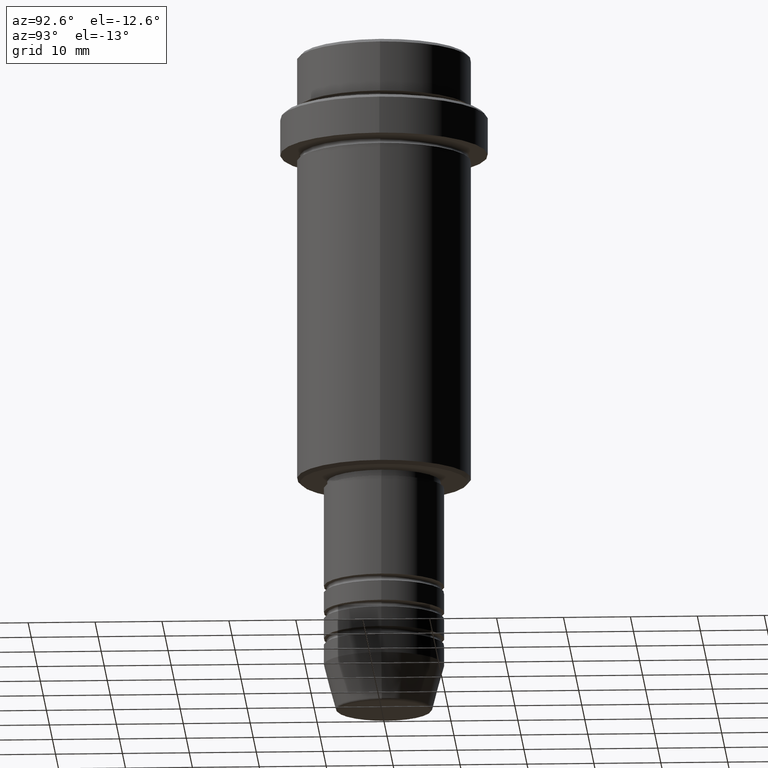
[diagram: clean part render]
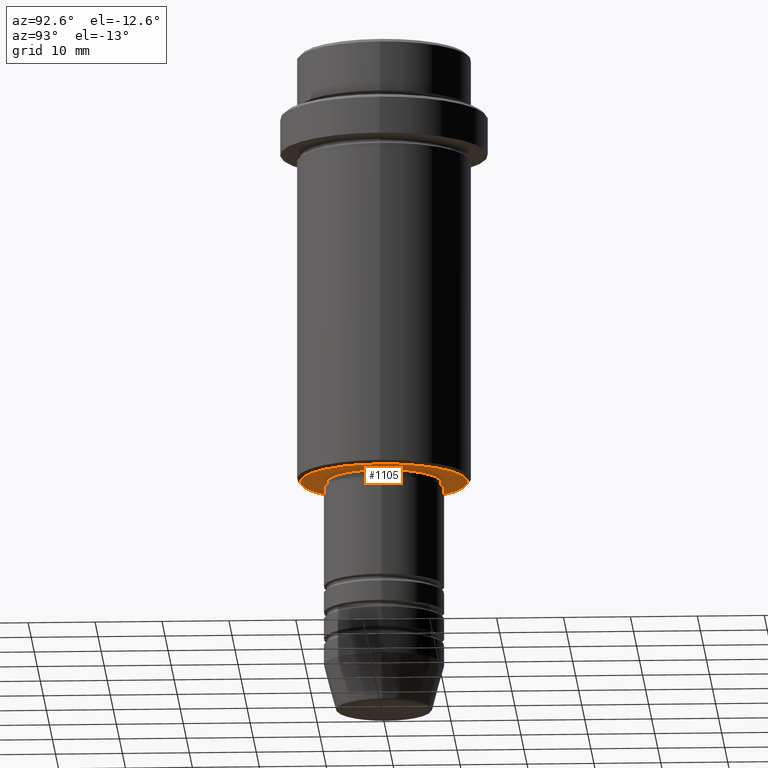
[diagram: same view with one face highlighted and labeled with its STEP entity id]
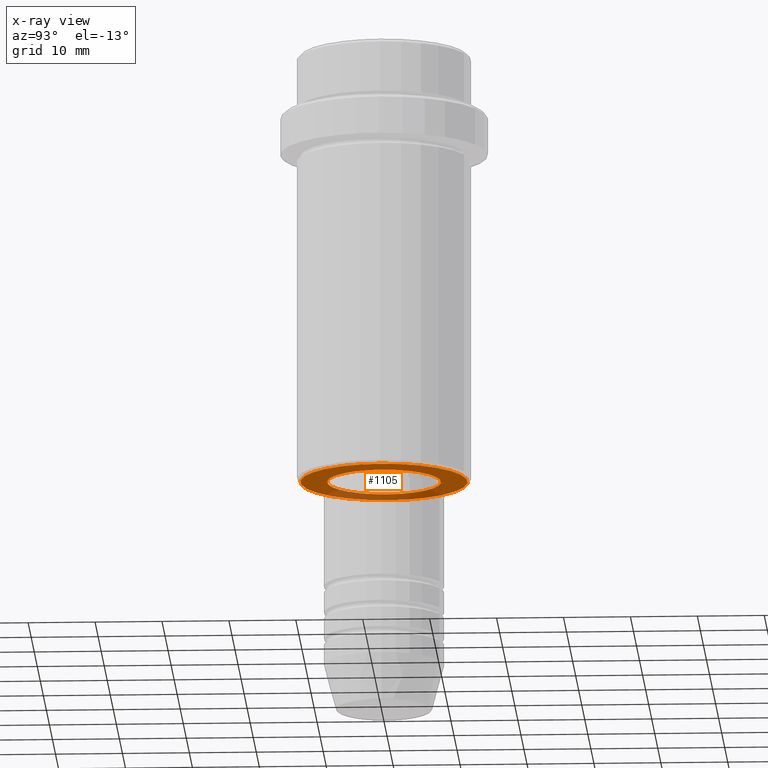
[diagram: x-ray of the same camera — body ghosted, the highlighted face saturated]
A machine part, auxiliary view. The second image highlights one B-rep face of the part: STEP entity #1105.
The next image is the same camera in x-ray: the body ghosted, the highlighted face saturated — about 27% of this face is hidden behind the body in this view.
In plain terms, the highlighted planar face has unit normal (0, 0, -1).
Its self-contained STEP definition (entity closure, byte-faithful):
#14 = DIRECTION ( 'NONE',  ( 1.000000000000000000, 0.000000000000000000, 0.000000000000000000 ) ) ;
#48 = CARTESIAN_POINT ( 'NONE',  ( 0.000000000000000000, 0.000000000000000000, -65.00000000000000000 ) ) ;
#52 = DIRECTION ( 'NONE',  ( -1.000000000000000000, 0.000000000000000000, 0.000000000000000000 ) ) ;
#67 = EDGE_LOOP ( 'NONE', ( #931, #602 ) ) ;
#79 = VERTEX_POINT ( 'NONE', #755 ) ;
#197 = EDGE_CURVE ( 'NONE', #826, #79, #239, .T. ) ;
#198 = DIRECTION ( 'NONE',  ( 0.000000000000000000, 0.000000000000000000, -1.000000000000000000 ) ) ;
#239 = CIRCLE ( 'NONE', #375, 8.499999999999994671 ) ;
#261 = FACE_OUTER_BOUND ( 'NONE', #67, .T. ) ;
#286 = DIRECTION ( 'NONE',  ( 1.000000000000000000, 0.000000000000000000, 0.000000000000000000 ) ) ;
#351 = DIRECTION ( 'NONE',  ( -1.000000000000000000, 0.000000000000000000, -0.000000000000000000 ) ) ;
#373 = DIRECTION ( 'NONE',  ( -0.000000000000000000, -0.000000000000000000, 1.000000000000000000 ) ) ;
#375 = AXIS2_PLACEMENT_3D ( 'NONE', #1013, #1236, #14 ) ;
#409 = EDGE_CURVE ( 'NONE', #79, #826, #1125, .T. ) ;
#419 = CARTESIAN_POINT ( 'NONE',  ( -8.499999999999994671, 1.040949779275249745E-15, -65.00000000000000000 ) ) ;
#475 = DIRECTION ( 'NONE',  ( 0.000000000000000000, 0.000000000000000000, -1.000000000000000000 ) ) ;
#519 = AXIS2_PLACEMENT_3D ( 'NONE', #733, #373, #286 ) ;
#563 = ORIENTED_EDGE ( 'NONE', *, *, #197, .T. ) ;
#602 = ORIENTED_EDGE ( 'NONE', *, *, #875, .T. ) ;
#605 = CARTESIAN_POINT ( 'NONE',  ( 0.000000000000000000, 0.000000000000000000, -65.00000000000000000 ) ) ;
#613 = AXIS2_PLACEMENT_3D ( 'NONE', #48, #935, #1366 ) ;
#683 = PLANE ( 'NONE',  #1382 ) ;
#704 = FACE_BOUND ( 'NONE', #1245, .T. ) ;
#733 = CARTESIAN_POINT ( 'NONE',  ( 0.000000000000000000, 0.000000000000000000, -65.00000000000000000 ) ) ;
#755 = CARTESIAN_POINT ( 'NONE',  ( 8.499999999999994671, 0.000000000000000000, -65.00000000000000000 ) ) ;
#826 = VERTEX_POINT ( 'NONE', #419 ) ;
#829 = CARTESIAN_POINT ( 'NONE',  ( -12.49999999999998401, 1.561424668912874125E-15, -65.00000000000000000 ) ) ;
#843 = ORIENTED_EDGE ( 'NONE', *, *, #409, .T. ) ;
#869 = VERTEX_POINT ( 'NONE', #829 ) ;
#875 = EDGE_CURVE ( 'NONE', #869, #944, #1250, .T. ) ;
#931 = ORIENTED_EDGE ( 'NONE', *, *, #1343, .T. ) ;
#935 = DIRECTION ( 'NONE',  ( 0.000000000000000000, 0.000000000000000000, -1.000000000000000000 ) ) ;
#944 = VERTEX_POINT ( 'NONE', #988 ) ;
#988 = CARTESIAN_POINT ( 'NONE',  ( 12.49999999999998401, 0.000000000000000000, -65.00000000000000000 ) ) ;
#1013 = CARTESIAN_POINT ( 'NONE',  ( 0.000000000000000000, 0.000000000000000000, -65.00000000000000000 ) ) ;
#1105 = ADVANCED_FACE ( 'NONE', ( #261, #704 ), #683, .T. ) ;
#1116 = CARTESIAN_POINT ( 'NONE',  ( 0.000000000000000000, 13.00000000000000000, -65.00000000000000000 ) ) ;
#1125 = CIRCLE ( 'NONE', #519, 8.499999999999994671 ) ;
#1236 = DIRECTION ( 'NONE',  ( -0.000000000000000000, -0.000000000000000000, 1.000000000000000000 ) ) ;
#1245 = EDGE_LOOP ( 'NONE', ( #843, #563 ) ) ;
#1250 = CIRCLE ( 'NONE', #1314, 12.49999999999998401 ) ;
#1277 = CIRCLE ( 'NONE', #613, 12.49999999999998401 ) ;
#1314 = AXIS2_PLACEMENT_3D ( 'NONE', #605, #198, #52 ) ;
#1343 = EDGE_CURVE ( 'NONE', #944, #869, #1277, .T. ) ;
#1366 = DIRECTION ( 'NONE',  ( -1.000000000000000000, 0.000000000000000000, 0.000000000000000000 ) ) ;
#1382 = AXIS2_PLACEMENT_3D ( 'NONE', #1116, #475, #351 ) ;